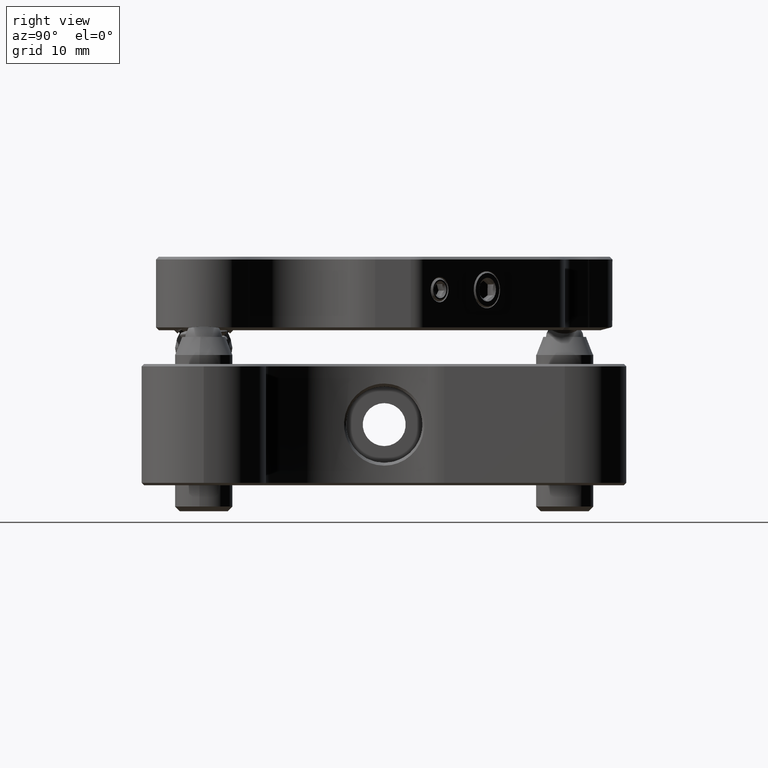
[diagram: clean part render]
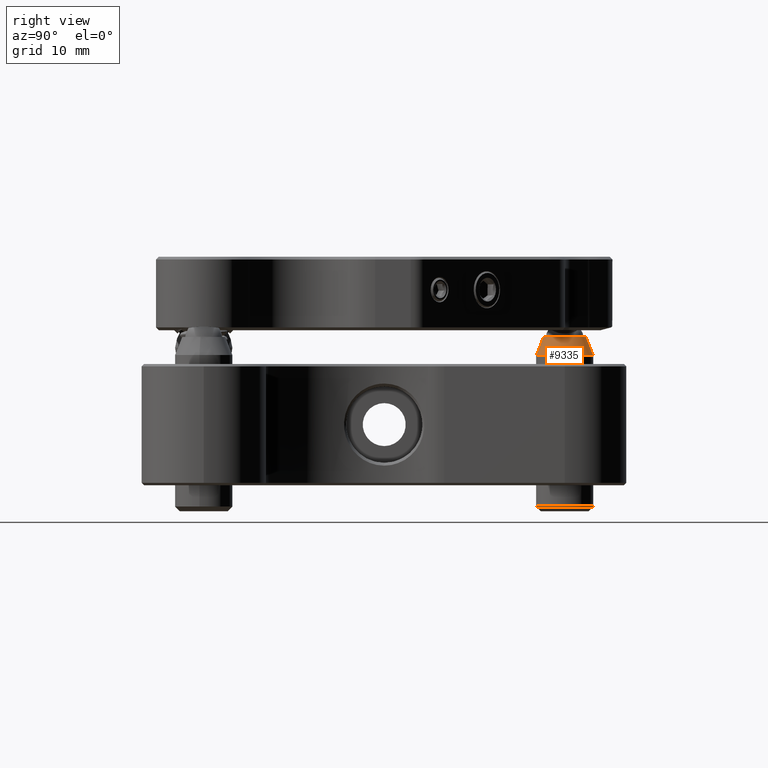
[diagram: same view with one face highlighted and labeled with its STEP entity id]
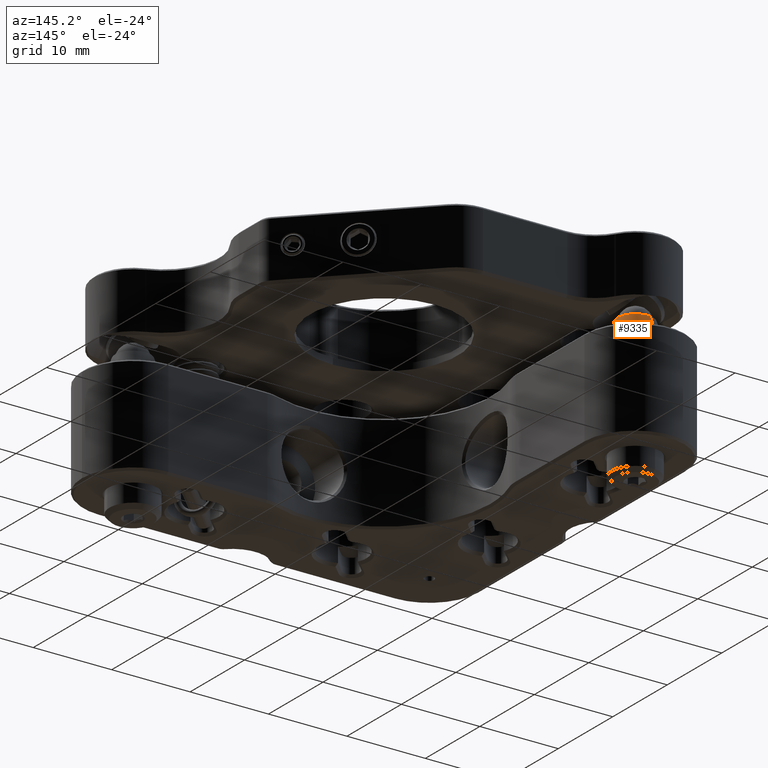
[diagram: same view with one face highlighted and labeled with its STEP entity id]
A machine part, right view. The second image highlights one B-rep face of the part: STEP entity #9335.
A second angle (auxiliary view) of the same face is appended — the face is thin or edge-on in the first view.
In plain terms, the highlighted conical surface has half-angle 21.541 deg.
Its self-contained STEP definition (entity closure, byte-faithful):
#3793 = CARTESIAN_POINT ( 'NONE',  ( 1.900000000000009237, 0.000000000000000000, 0.000000000000000000 ) ) ;
#3899 = AXIS2_PLACEMENT_3D ( 'NONE', #3793, #16998, #27645 ) ;
#4679 = VECTOR ( 'NONE', #15166, 1000.000000000000114 ) ;
#5567 = ORIENTED_EDGE ( 'NONE', *, *, #15463, .F. ) ;
#5805 = FACE_OUTER_BOUND ( 'NONE', #6312, .T. ) ;
#5841 = LINE ( 'NONE', #12359, #27895 ) ;
#6197 = CIRCLE ( 'NONE', #9372, 2.250000000000001332 ) ;
#6312 = EDGE_LOOP ( 'NONE', ( #5567, #25544, #7747, #14521 ) ) ;
#7094 = EDGE_CURVE ( 'NONE', #9714, #18145, #8331, .T. ) ;
#7747 = ORIENTED_EDGE ( 'NONE', *, *, #18477, .F. ) ;
#7755 = DIRECTION ( 'NONE',  ( 0.000000000000000000, 0.000000000000000000, -1.000000000000000000 ) ) ;
#8331 = LINE ( 'NONE', #10343, #4679 ) ;
#9335 = ADVANCED_FACE ( 'NONE', ( #5805 ), #27487, .T. ) ;
#9372 = AXIS2_PLACEMENT_3D ( 'NONE', #22673, #26791, #7755 ) ;
#9714 = VERTEX_POINT ( 'NONE', #24220 ) ;
#10343 = CARTESIAN_POINT ( 'NONE',  ( 1.900000000000009237, 3.673940397442060361E-16, 3.000000000000000444 ) ) ;
#12359 = CARTESIAN_POINT ( 'NONE',  ( 1.900000000000009237, 0.000000000000000000, -3.000000000000000444 ) ) ;
#14382 = EDGE_CURVE ( 'NONE', #15444, #21675, #5841, .T. ) ;
#14521 = ORIENTED_EDGE ( 'NONE', *, *, #14382, .F. ) ;
#15103 = AXIS2_PLACEMENT_3D ( 'NONE', #20911, #27017, #20630 ) ;
#15166 = DIRECTION ( 'NONE',  ( 0.9301552213313234452, 4.496493215185249795E-17, 0.3671665347360466014 ) ) ;
#15294 = CARTESIAN_POINT ( 'NONE',  ( 1.900000000000009237, 3.673940397442060361E-16, -3.000000000000000444 ) ) ;
#15444 = VERTEX_POINT ( 'NONE', #27212 ) ;
#15463 = EDGE_CURVE ( 'NONE', #9714, #15444, #6197, .T. ) ;
#16998 = DIRECTION ( 'NONE',  ( 1.000000000000000000, -0.000000000000000000, -0.000000000000000000 ) ) ;
#17838 = CIRCLE ( 'NONE', #15103, 3.000000000000000444 ) ;
#18145 = VERTEX_POINT ( 'NONE', #23817 ) ;
#18477 = EDGE_CURVE ( 'NONE', #21675, #18145, #17838, .T. ) ;
#18891 = DIRECTION ( 'NONE',  ( 0.9301552213313234452, 0.000000000000000000, -0.3671665347360466014 ) ) ;
#20630 = DIRECTION ( 'NONE',  ( 0.000000000000000000, 0.000000000000000000, -1.000000000000000000 ) ) ;
#20911 = CARTESIAN_POINT ( 'NONE',  ( 1.900000000000009237, 0.000000000000000000, 0.000000000000000000 ) ) ;
#21675 = VERTEX_POINT ( 'NONE', #15294 ) ;
#22673 = CARTESIAN_POINT ( 'NONE',  ( 0.000000000000000000, 0.000000000000000000, 0.000000000000000000 ) ) ;
#23817 = CARTESIAN_POINT ( 'NONE',  ( 1.900000000000009237, 0.000000000000000000, 3.000000000000000444 ) ) ;
#24220 = CARTESIAN_POINT ( 'NONE',  ( 0.000000000000000000, 3.214697847761803062E-16, 2.250000000000001332 ) ) ;
#25544 = ORIENTED_EDGE ( 'NONE', *, *, #7094, .T. ) ;
#26791 = DIRECTION ( 'NONE',  ( -1.000000000000000000, -0.000000000000000000, -0.000000000000000000 ) ) ;
#27017 = DIRECTION ( 'NONE',  ( 1.000000000000000000, -0.000000000000000000, -0.000000000000000000 ) ) ;
#27212 = CARTESIAN_POINT ( 'NONE',  ( 0.000000000000000000, 0.000000000000000000, -2.250000000000001332 ) ) ;
#27487 = CONICAL_SURFACE ( 'NONE', #3899, 3.000000000000000444, 0.3759609538713036825 ) ;
#27645 = DIRECTION ( 'NONE',  ( 0.000000000000000000, 0.000000000000000000, -1.000000000000000000 ) ) ;
#27895 = VECTOR ( 'NONE', #18891, 1000.000000000000114 ) ;